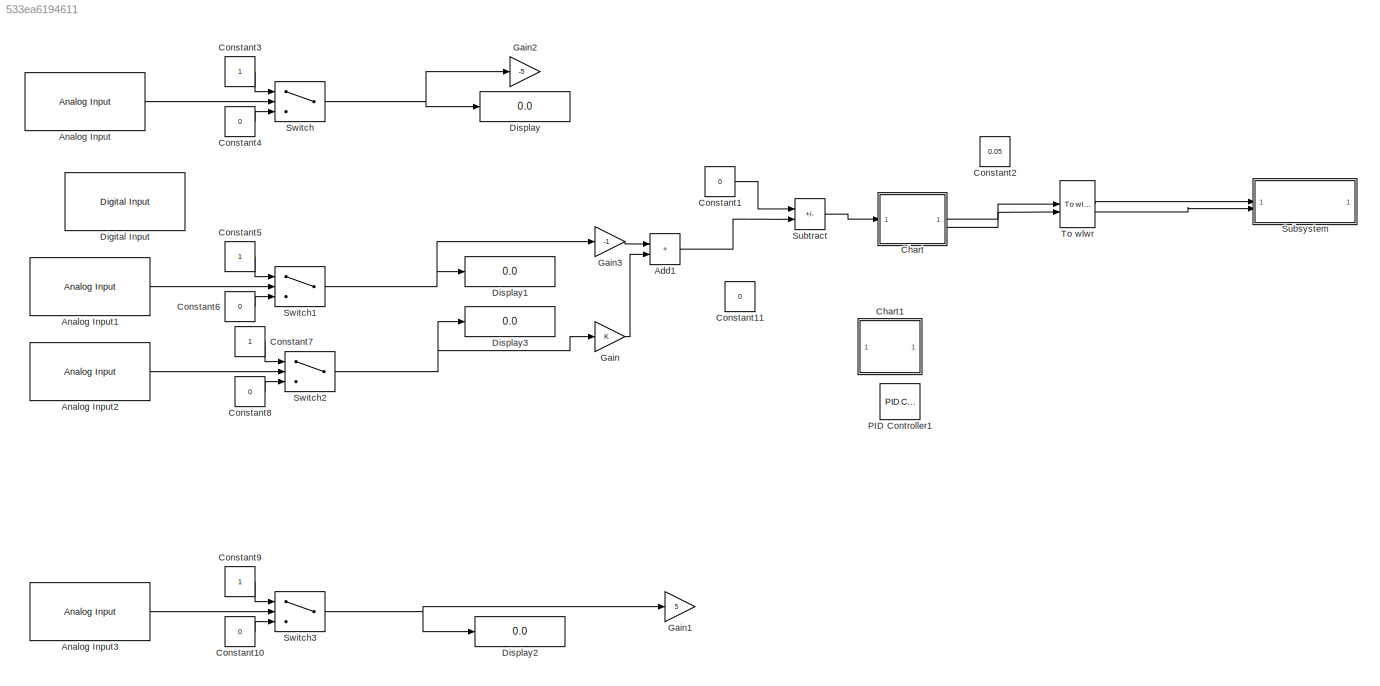
MODEL slx_533ea6194611
KIND model
CONFIG AbsTol = auto
CONFIG EnableMultiTasking = off
CONFIG FixedStep = 0.01
CONFIG MaxStep = auto
CONFIG MinStep = auto
CONFIG RelTol = 1e-3
CONFIG SampleTimeConstraint = Unconstrained
CONFIG SolverName = FixedStepDiscrete
CONFIG StartTime = 0.0
CONFIG StopTime = 15
BLOCK [Sum] Add1
  IconShape = rectangular
BLOCK [Reference] Analog Input  REF=arduinolib/Analog Input
  SourceBlock = arduinolib/Analog Input
  SourceType = Arduino Analog Input
BLOCK [Reference] Analog Input1  REF=arduinolib/Analog Input
  SourceBlock = arduinolib/Analog Input
  SourceType = Arduino Analog Input
BLOCK [Reference] Analog Input2  REF=arduinolib/Analog Input
  SourceBlock = arduinolib/Analog Input
  SourceType = Arduino Analog Input
BLOCK [Reference] Analog Input3  REF=arduinolib/Analog Input
  SourceBlock = arduinolib/Analog Input
  SourceType = Arduino Analog Input
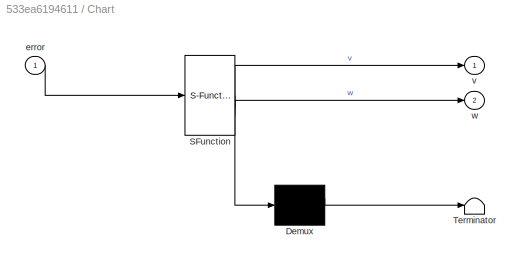
BLOCK [SubSystem] Chart
  ErrorFcn = Stateflow.Translate.translate
  PermitHierarchicalResolution = ExplicitOnly
  SFBlockType = Chart
  TreatAsAtomicUnit = on
BLOCK [Demux] Chart/ Demux 
  Outputs = 1
BLOCK [S-Function] Chart/ SFunction 
  EnableBusSupport = on
  FunctionName = sf_sfun
  PortCounts = [1 3]
  SFcnIsStateOwnerBlock = off
  SFunctionDeploymentMode = off
  Tag = Stateflow S-Function 3
BLOCK [Terminator] Chart/ Terminator 
BLOCK [Inport] Chart/error
BLOCK [Outport] Chart/v
BLOCK [Outport] Chart/w
  Port = 2
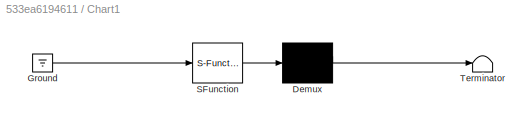
BLOCK [SubSystem] Chart1
  ErrorFcn = Stateflow.Translate.translate
  PermitHierarchicalResolution = ExplicitOnly
  SFBlockType = Chart
  TreatAsAtomicUnit = on
BLOCK [Demux] Chart1/ Demux 
  Outputs = 1
BLOCK [Ground] Chart1/ Ground 
BLOCK [S-Function] Chart1/ SFunction 
  EnableBusSupport = on
  FunctionName = sf_sfun
  PortCounts = [1 1]
  SFcnIsStateOwnerBlock = off
  SFunctionDeploymentMode = off
  Tag = Stateflow S-Function 1
BLOCK [Terminator] Chart1/ Terminator 
BLOCK [Constant] Constant1
  Value = 0
BLOCK [Constant] Constant10
  Value = 0
BLOCK [Constant] Constant11
  Value = 0
BLOCK [Constant] Constant2
  Value = 0.05
BLOCK [Constant] Constant3
BLOCK [Constant] Constant4
  Value = 0
BLOCK [Constant] Constant5
BLOCK [Constant] Constant6
  Value = 0
BLOCK [Constant] Constant7
BLOCK [Constant] Constant8
  Value = 0
BLOCK [Constant] Constant9
BLOCK [Reference] Digital Input  REF=arduinolib/Digital Input
  SourceBlock = arduinolib/Digital Input
  SourceType = Arduino Digital Input
BLOCK [Display] Display
  Decimation = 1
BLOCK [Display] Display1
  Decimation = 1
BLOCK [Display] Display2
  Decimation = 1
BLOCK [Display] Display3
  Decimation = 1
BLOCK [Gain] Gain
BLOCK [Gain] Gain1
  Gain = 5
BLOCK [Gain] Gain2
  Gain = -5
BLOCK [Gain] Gain3
  Gain = -1
BLOCK [Reference] PID Controller1  REF=slpidlib/PID Controller
  LibrarySourceBlock = simulink/Continuous/PID Controller
  SourceBlock = slpidlib/PID Controller
  SourceType = PID 1dof
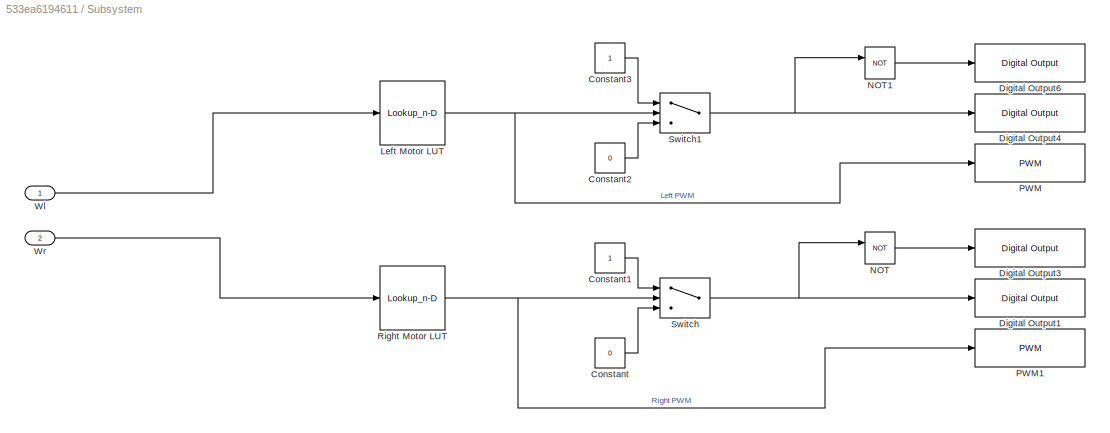
BLOCK [SubSystem] Subsystem
  LibrarySourceBlock = hdlsllib/Ports &\nSubsystems/Subsystem
BLOCK [Constant] Subsystem/Constant
  Value = 0
BLOCK [Constant] Subsystem/Constant1
BLOCK [Constant] Subsystem/Constant2
  Value = 0
BLOCK [Constant] Subsystem/Constant3
BLOCK [Reference] Subsystem/Digital Output1  REF=arduinolib/Digital Output
  SourceBlock = arduinolib/Digital Output
  SourceType = Arduino Digital Output
BLOCK [Reference] Subsystem/Digital Output3  REF=arduinolib/Digital Output
  SourceBlock = arduinolib/Digital Output
  SourceType = Arduino Digital Output
BLOCK [Reference] Subsystem/Digital Output4  REF=arduinolib/Digital Output
  SourceBlock = arduinolib/Digital Output
  SourceType = Arduino Digital Output
BLOCK [Reference] Subsystem/Digital Output6  REF=arduinolib/Digital Output
  SourceBlock = arduinolib/Digital Output
  SourceType = Arduino Digital Output
BLOCK [Lookup_n-D] Subsystem/Left Motor LUT
  BreakpointsForDimension1 = WheelSpeed
  ExtrapMethod = Clip
  InputPortMap = u0
  InternalRulePriority = Speed
  InterpMethod = Nearest
  NumberOfTableDimensions = 1
  RndMeth = Simplest
  Table = InputPWM
BLOCK [Logic] Subsystem/NOT
  AllPortsSameDT = off
  IconShape = distinctive
  Operator = NOT
  OutDataTypeStr = boolean
BLOCK [Logic] Subsystem/NOT1
  AllPortsSameDT = off
  IconShape = distinctive
  Operator = NOT
  OutDataTypeStr = boolean
BLOCK [Reference] Subsystem/PWM  REF=arduinolib/PWM
  SourceBlock = arduinolib/PWM
  SourceType = Arduino PWM
BLOCK [Reference] Subsystem/PWM1  REF=arduinolib/PWM
  SourceBlock = arduinolib/PWM
  SourceType = Arduino PWM
BLOCK [Lookup_n-D] Subsystem/Right Motor LUT
  BreakpointsForDimension1 = WheelSpeed
  ExtrapMethod = Clip
  InputPortMap = u0
  InternalRulePriority = Speed
  InterpMethod = Nearest
  NumberOfTableDimensions = 1
  RndMeth = Simplest
  Table = InputPWM
BLOCK [Switch] Subsystem/Switch
  Criteria = u2 > Threshold
  InputSameDT = off
  SaturateOnIntegerOverflow = off
BLOCK [Switch] Subsystem/Switch1
  Criteria = u2 > Threshold
  InputSameDT = off
  SaturateOnIntegerOverflow = off
BLOCK [Inport] Subsystem/Wl
BLOCK [Inport] Subsystem/Wr
  Port = 2
BLOCK [Sum] Subtract
  IconShape = rectangular
  Inputs = +-
BLOCK [Switch] Switch
  InputSameDT = off
  SaturateOnIntegerOverflow = off
  Threshold = 2
BLOCK [Switch] Switch1
  InputSameDT = off
  SaturateOnIntegerOverflow = off
  Threshold = 2
BLOCK [Switch] Switch2
  InputSameDT = off
  SaturateOnIntegerOverflow = off
  Threshold = 2
BLOCK [Switch] Switch3
  InputSameDT = off
  SaturateOnIntegerOverflow = off
  Threshold = 2
BLOCK [Reference] To wlwr  REF=mobileRoboticsTrainingLib/To wlwr
  SourceBlock = mobileRoboticsTrainingLib/To wlwr
  SourceProductName = Mobile Robotics Training Library
  SourceType = To wlwr
LINE Add1:1 -> Subtract:2
LINE Analog Input1:1 -> Switch1:2
LINE Analog Input2:1 -> Switch2:2
LINE Analog Input3:1 -> Switch3:2
LINE Analog Input:1 -> Switch:2
LINE Chart:1 -> To wlwr:1
LINE Chart:2 -> To wlwr:2
LINE Constant10:1 -> Switch3:3
LINE Constant1:1 -> Subtract:1
LINE Constant3:1 -> Switch:1
LINE Constant4:1 -> Switch:3
LINE Constant5:1 -> Switch1:1
LINE Constant6:1 -> Switch1:3
LINE Constant7:1 -> Switch2:1
LINE Constant8:1 -> Switch2:3
LINE Constant9:1 -> Switch3:1
LINE Gain3:1 -> Add1:1
LINE Gain:1 -> Add1:2
LINE Subsystem/Constant1:1 -> Subsystem/Switch:1
LINE Subsystem/Constant2:1 -> Subsystem/Switch1:3
LINE Subsystem/Constant3:1 -> Subsystem/Switch1:1
LINE Subsystem/Constant:1 -> Subsystem/Switch:3
NET Subsystem/Left Motor LUT:1 -> Subsystem/PWM:1, Subsystem/Switch1:2
LINE Subsystem/NOT1:1 -> Subsystem/Digital Output6:1
LINE Subsystem/NOT:1 -> Subsystem/Digital Output3:1
NET Subsystem/Right Motor LUT:1 -> Subsystem/PWM1:1, Subsystem/Switch:2
NET Subsystem/Switch1:1 -> Subsystem/Digital Output4:1, Subsystem/NOT1:1
NET Subsystem/Switch:1 -> Subsystem/Digital Output1:1, Subsystem/NOT:1
LINE Subsystem/Wl:1 -> Subsystem/Left Motor LUT:1
LINE Subsystem/Wr:1 -> Subsystem/Right Motor LUT:1
LINE Subtract:1 -> Chart:1
NET Switch1:1 -> Display1:1, Gain3:1
NET Switch2:1 -> Display3:1, Gain:1
NET Switch3:1 -> Display2:1, Gain1:1
NET Switch:1 -> Display:1, Gain2:1
LINE To wlwr:1 -> Subsystem:1
LINE To wlwr:2 -> Subsystem:2
note: NET lines group one-source signal fan-out (src -> all destinations, sorted); 1:1 wires keep LINE
CHART Chart1 states=0 transitions=0
CHART Chart states=3 transitions=7
  STATE_LABEL 'Straight\nentry:\nw =0\nv= 0.06'
  STATE_LABEL 'SteerRight\nentry:\nw = -1\nv=0.045'
  STATE_LABEL 'SteerLeft\nentry:\nw= 3.8\nv=0.045'
CHART  states=0 transitions=0
CHART  states=0 transitions=0
